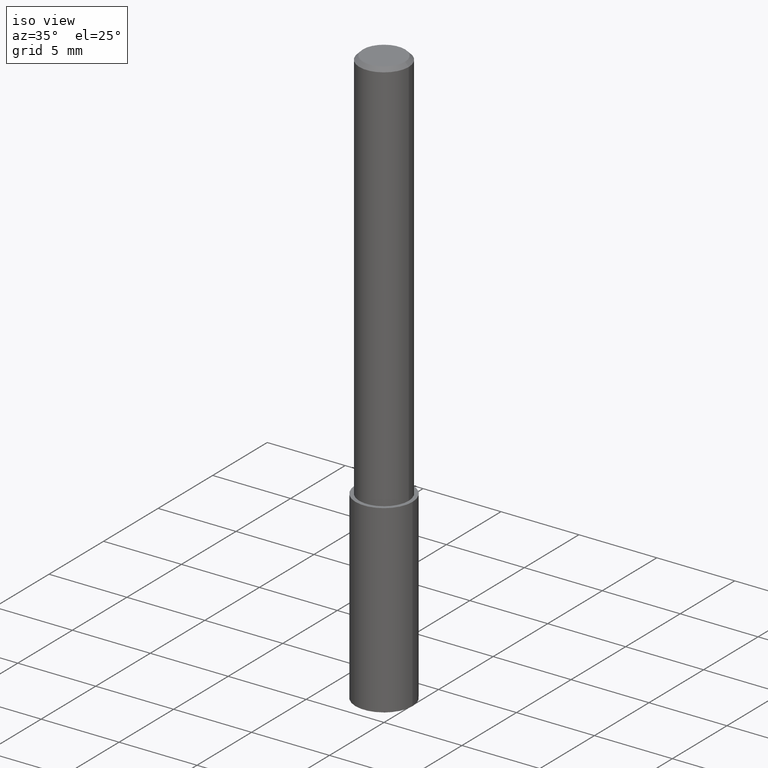
[diagram: clean part render]
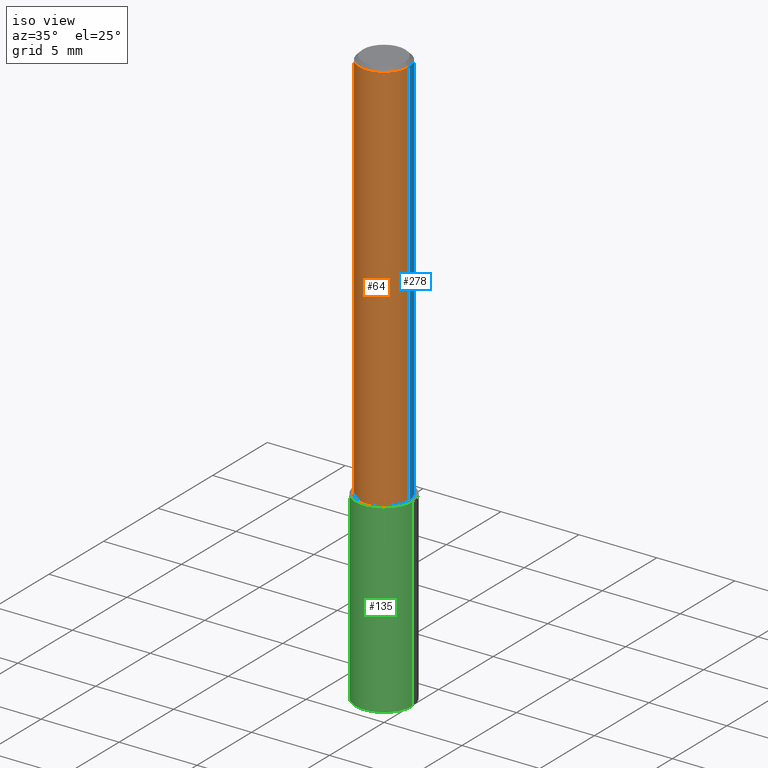
[diagram: same view with three faces highlighted in distinct colors, each labeled with its STEP entity id]
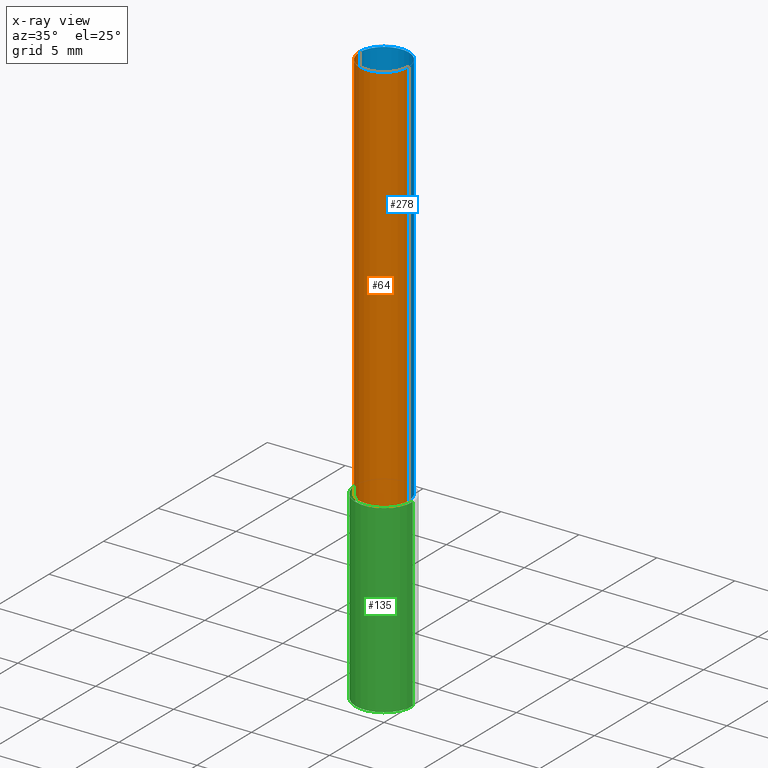
[diagram: x-ray of the same camera — body ghosted, the three highlighted faces saturated]
A machine part, iso view with three faces highlighted in distinct colors.
The next image is the same camera in x-ray (body ghosted, the three faces saturated) — at least one of them is partly hidden behind the body in this view.
Their STEP definitions:

[orange] entity #64 — the highlighted cylindrical surface (edge-blend (fillet) strip) has radius 1.5875 mm, axis along (-0, 0, 1).
#5 = DIRECTION ( 'NONE',  ( -2.445468806185136597E-29, 3.491481338843145583E-15, 1.000000000000000000 ) ) ;
#30 = DIRECTION ( 'NONE',  ( -2.445468806185136597E-29, 3.491481338843145583E-15, 1.000000000000000000 ) ) ;
#31 = LINE ( 'NONE', #320, #180 ) ;
#56 = EDGE_CURVE ( 'NONE', #208, #173, #177, .T. ) ;
#64 = ADVANCED_FACE ( 'NONE', ( #266 ), #126, .T. ) ;
#65 = EDGE_CURVE ( 'NONE', #162, #208, #199, .T. ) ;
#67 = VERTEX_POINT ( 'NONE', #275 ) ;
#80 = VECTOR ( 'NONE', #151, 39.37007874015748143 ) ;
#102 = CIRCLE ( 'NONE', #227, 0.06250000000000000000 ) ;
#116 = ORIENTED_EDGE ( 'NONE', *, *, #338, .F. ) ;
#124 = ORIENTED_EDGE ( 'NONE', *, *, #292, .F. ) ;
#126 = CYLINDRICAL_SURFACE ( 'NONE', #168, 0.06250000000000006939 ) ;
#131 = AXIS2_PLACEMENT_3D ( 'NONE', #243, #30, #269 ) ;
#142 = ORIENTED_EDGE ( 'NONE', *, *, #65, .T. ) ;
#151 = DIRECTION ( 'NONE',  ( -2.445468806185136877E-29, 3.491481338843145188E-15, 1.000000000000000000 ) ) ;
#158 = CARTESIAN_POINT ( 'NONE',  ( 2.292627005798580623E-31, -3.273263755165470184E-17, -0.009375000000000060368 ) ) ;
#162 = VERTEX_POINT ( 'NONE', #248 ) ;
#168 = AXIS2_PLACEMENT_3D ( 'NONE', #183, #184, #291 ) ;
#173 = VERTEX_POINT ( 'NONE', #296 ) ;
#177 = LINE ( 'NONE', #286, #80 ) ;
#180 = VECTOR ( 'NONE', #326, 39.37007874015748143 ) ;
#183 = CARTESIAN_POINT ( 'NONE',  ( 0.000000000000000000, 0.000000000000000000, 0.000000000000000000 ) ) ;
#184 = DIRECTION ( 'NONE',  ( -2.445468806185136597E-29, 3.491481338843145583E-15, 1.000000000000000000 ) ) ;
#199 = CIRCLE ( 'NONE', #131, 0.06250000000000012490 ) ;
#208 = VERTEX_POINT ( 'NONE', #301 ) ;
#227 = AXIS2_PLACEMENT_3D ( 'NONE', #158, #5, #311 ) ;
#243 = CARTESIAN_POINT ( 'NONE',  ( 2.445468806185137438E-29, -3.491481338843146371E-15, -1.000000000000000222 ) ) ;
#248 = CARTESIAN_POINT ( 'NONE',  ( -0.06250000000000012490, -1.318017778347335489E-15, -1.000000000000000222 ) ) ;
#266 = FACE_OUTER_BOUND ( 'NONE', #333, .T. ) ;
#269 = DIRECTION ( 'NONE',  ( 1.000000000000000000, -6.982962677686264344E-15, 0.000000000000000000 ) ) ;
#275 = CARTESIAN_POINT ( 'NONE',  ( -0.06250000000000000000, -1.318017778347336672E-15, -0.009375000000000060368 ) ) ;
#286 = CARTESIAN_POINT ( 'NONE',  ( 0.06250000000000006939, -4.364351673553921624E-16, 3.047610484872463374E-30 ) ) ;
#290 = ORIENTED_EDGE ( 'NONE', *, *, #56, .T. ) ;
#291 = DIRECTION ( 'NONE',  ( 1.000000000000000000, -6.982962677686266711E-15, 4.876176775795935793E-29 ) ) ;
#292 = EDGE_CURVE ( 'NONE', #162, #67, #31, .T. ) ;
#296 = CARTESIAN_POINT ( 'NONE',  ( 0.06250000000000000000, -4.691678049070463404E-16, -0.009375000000000060368 ) ) ;
#301 = CARTESIAN_POINT ( 'NONE',  ( 0.06250000000000012490, -3.927916506198539224E-15, -1.000000000000000222 ) ) ;
#311 = DIRECTION ( 'NONE',  ( 1.000000000000000000, -6.982962677686266711E-15, 0.000000000000000000 ) ) ;
#320 = CARTESIAN_POINT ( 'NONE',  ( -0.06250000000000006939, 4.440892098500631092E-16, -3.074334431409319267E-30 ) ) ;
#326 = DIRECTION ( 'NONE',  ( -2.445468806185136877E-29, 3.491481338843145188E-15, 1.000000000000000000 ) ) ;
#333 = EDGE_LOOP ( 'NONE', ( #124, #142, #290, #116 ) ) ;
#338 = EDGE_CURVE ( 'NONE', #67, #173, #102, .T. ) ;

[blue] entity #278 — the highlighted cylindrical surface (edge-blend (fillet) strip) has radius 1.5875 mm, axis along (-0, 0, 1).
#31 = LINE ( 'NONE', #320, #180 ) ;
#46 = EDGE_CURVE ( 'NONE', #173, #67, #317, .T. ) ;
#56 = EDGE_CURVE ( 'NONE', #208, #173, #177, .T. ) ;
#67 = VERTEX_POINT ( 'NONE', #275 ) ;
#80 = VECTOR ( 'NONE', #151, 39.37007874015748143 ) ;
#91 = CARTESIAN_POINT ( 'NONE',  ( 2.292627005798580623E-31, -3.273263755165470184E-17, -0.009375000000000060368 ) ) ;
#92 = FACE_OUTER_BOUND ( 'NONE', #244, .T. ) ;
#94 = DIRECTION ( 'NONE',  ( -2.445468806185136597E-29, 3.491481338843145583E-15, 1.000000000000000000 ) ) ;
#99 = DIRECTION ( 'NONE',  ( -2.445468806185136597E-29, 3.491481338843145583E-15, 1.000000000000000000 ) ) ;
#103 = DIRECTION ( 'NONE',  ( 1.000000000000000000, -6.982962677686266711E-15, 4.876176775795935793E-29 ) ) ;
#128 = EDGE_CURVE ( 'NONE', #208, #162, #335, .T. ) ;
#151 = DIRECTION ( 'NONE',  ( -2.445468806185136877E-29, 3.491481338843145188E-15, 1.000000000000000000 ) ) ;
#154 = CARTESIAN_POINT ( 'NONE',  ( 2.445468806185137438E-29, -3.491481338843146371E-15, -1.000000000000000222 ) ) ;
#162 = VERTEX_POINT ( 'NONE', #248 ) ;
#164 = DIRECTION ( 'NONE',  ( 1.000000000000000000, -6.982962677686264344E-15, 0.000000000000000000 ) ) ;
#173 = VERTEX_POINT ( 'NONE', #296 ) ;
#177 = LINE ( 'NONE', #286, #80 ) ;
#180 = VECTOR ( 'NONE', #326, 39.37007874015748143 ) ;
#200 = CYLINDRICAL_SURFACE ( 'NONE', #272, 0.06250000000000006939 ) ;
#205 = DIRECTION ( 'NONE',  ( 1.000000000000000000, -6.982962677686266711E-15, 0.000000000000000000 ) ) ;
#208 = VERTEX_POINT ( 'NONE', #301 ) ;
#239 = ORIENTED_EDGE ( 'NONE', *, *, #292, .T. ) ;
#240 = ORIENTED_EDGE ( 'NONE', *, *, #56, .F. ) ;
#244 = EDGE_LOOP ( 'NONE', ( #309, #239, #262, #240 ) ) ;
#248 = CARTESIAN_POINT ( 'NONE',  ( -0.06250000000000012490, -1.318017778347335489E-15, -1.000000000000000222 ) ) ;
#251 = DIRECTION ( 'NONE',  ( -2.445468806185136597E-29, 3.491481338843145583E-15, 1.000000000000000000 ) ) ;
#262 = ORIENTED_EDGE ( 'NONE', *, *, #46, .F. ) ;
#272 = AXIS2_PLACEMENT_3D ( 'NONE', #305, #94, #103 ) ;
#275 = CARTESIAN_POINT ( 'NONE',  ( -0.06250000000000000000, -1.318017778347336672E-15, -0.009375000000000060368 ) ) ;
#278 = ADVANCED_FACE ( 'NONE', ( #92 ), #200, .T. ) ;
#286 = CARTESIAN_POINT ( 'NONE',  ( 0.06250000000000006939, -4.364351673553921624E-16, 3.047610484872463374E-30 ) ) ;
#292 = EDGE_CURVE ( 'NONE', #162, #67, #31, .T. ) ;
#296 = CARTESIAN_POINT ( 'NONE',  ( 0.06250000000000000000, -4.691678049070463404E-16, -0.009375000000000060368 ) ) ;
#301 = CARTESIAN_POINT ( 'NONE',  ( 0.06250000000000012490, -3.927916506198539224E-15, -1.000000000000000222 ) ) ;
#305 = CARTESIAN_POINT ( 'NONE',  ( 0.000000000000000000, 0.000000000000000000, 0.000000000000000000 ) ) ;
#309 = ORIENTED_EDGE ( 'NONE', *, *, #128, .T. ) ;
#312 = AXIS2_PLACEMENT_3D ( 'NONE', #91, #99, #205 ) ;
#317 = CIRCLE ( 'NONE', #312, 0.06250000000000000000 ) ;
#320 = CARTESIAN_POINT ( 'NONE',  ( -0.06250000000000006939, 4.440892098500631092E-16, -3.074334431409319267E-30 ) ) ;
#326 = DIRECTION ( 'NONE',  ( -2.445468806185136877E-29, 3.491481338843145188E-15, 1.000000000000000000 ) ) ;
#328 = AXIS2_PLACEMENT_3D ( 'NONE', #154, #251, #164 ) ;
#335 = CIRCLE ( 'NONE', #328, 0.06250000000000012490 ) ;

[green] entity #135 — the highlighted cylindrical surface (edge-blend (fillet) strip) has radius 1.8288 mm, axis along (-0, 0, 1).
#2 = DIRECTION ( 'NONE',  ( -2.445468806185136597E-29, 3.491481338843145583E-15, 1.000000000000000000 ) ) ;
#4 = CARTESIAN_POINT ( 'NONE',  ( -0.07199999999999999456, -2.979890569095874178E-15, -1.000000000000000222 ) ) ;
#9 = LINE ( 'NONE', #42, #101 ) ;
#18 = ORIENTED_EDGE ( 'NONE', *, *, #69, .T. ) ;
#19 = CARTESIAN_POINT ( 'NONE',  ( -0.07199999999999999456, -3.794149142288778637E-15, -1.000000000000000222 ) ) ;
#22 = CARTESIAN_POINT ( 'NONE',  ( -0.07200000000000000844, -4.608407715481682307E-15, -1.466425848612840088 ) ) ;
#29 = AXIS2_PLACEMENT_3D ( 'NONE', #220, #2, #214 ) ;
#35 = VECTOR ( 'NONE', #160, 39.37007874015748143 ) ;
#36 = FACE_OUTER_BOUND ( 'NONE', #219, .T. ) ;
#42 = CARTESIAN_POINT ( 'NONE',  ( 0.07199999999999999456, -3.994254651636557938E-15, -1.000000000000000222 ) ) ;
#69 = EDGE_CURVE ( 'NONE', #100, #319, #79, .T. ) ;
#72 = ORIENTED_EDGE ( 'NONE', *, *, #74, .F. ) ;
#74 = EDGE_CURVE ( 'NONE', #100, #204, #190, .T. ) ;
#79 = CIRCLE ( 'NONE', #29, 0.07200000000000000844 ) ;
#82 = AXIS2_PLACEMENT_3D ( 'NONE', #195, #133, #302 ) ;
#84 = EDGE_CURVE ( 'NONE', #204, #289, #111, .T. ) ;
#85 = CARTESIAN_POINT ( 'NONE',  ( 0.07199999999999999456, -3.994254651636557149E-15, -1.000000000000000222 ) ) ;
#96 = ORIENTED_EDGE ( 'NONE', *, *, #167, .T. ) ;
#100 = VERTEX_POINT ( 'NONE', #22 ) ;
#101 = VECTOR ( 'NONE', #105, 39.37007874015748143 ) ;
#105 = DIRECTION ( 'NONE',  ( -2.445468806185136877E-29, 3.491481338843145188E-15, 1.000000000000000000 ) ) ;
#107 = CYLINDRICAL_SURFACE ( 'NONE', #82, 0.07199999999999999456 ) ;
#111 = CIRCLE ( 'NONE', #159, 0.07199999999999999456 ) ;
#133 = DIRECTION ( 'NONE',  ( -2.445468806185136597E-29, 3.491481338843145583E-15, 1.000000000000000000 ) ) ;
#135 = ADVANCED_FACE ( 'NONE', ( #36 ), #107, .T. ) ;
#159 = AXIS2_PLACEMENT_3D ( 'NONE', #298, #222, #322 ) ;
#160 = DIRECTION ( 'NONE',  ( -2.445468806185136877E-29, 3.491481338843145188E-15, 1.000000000000000000 ) ) ;
#167 = EDGE_CURVE ( 'NONE', #319, #289, #9, .T. ) ;
#190 = LINE ( 'NONE', #4, #35 ) ;
#195 = CARTESIAN_POINT ( 'NONE',  ( 2.445468806185137438E-29, -3.491481338843146371E-15, -1.000000000000000222 ) ) ;
#204 = VERTEX_POINT ( 'NONE', #19 ) ;
#214 = DIRECTION ( 'NONE',  ( 1.000000000000000000, -6.982962677686264344E-15, 0.000000000000000000 ) ) ;
#219 = EDGE_LOOP ( 'NONE', ( #72, #18, #96, #337 ) ) ;
#220 = CARTESIAN_POINT ( 'NONE',  ( 3.586098669366267653E-29, -5.119998485228954106E-15, -1.466425848612840088 ) ) ;
#222 = DIRECTION ( 'NONE',  ( -2.445468806185136597E-29, 3.491481338843145583E-15, 1.000000000000000000 ) ) ;
#245 = CARTESIAN_POINT ( 'NONE',  ( 0.07200000000000000844, -5.622771798022365278E-15, -1.466425848612840088 ) ) ;
#289 = VERTEX_POINT ( 'NONE', #85 ) ;
#298 = CARTESIAN_POINT ( 'NONE',  ( 2.445468806185136877E-29, -3.491481338843145977E-15, -1.000000000000000222 ) ) ;
#302 = DIRECTION ( 'NONE',  ( 1.000000000000000000, -6.982962677686265133E-15, 0.000000000000000000 ) ) ;
#319 = VERTEX_POINT ( 'NONE', #245 ) ;
#322 = DIRECTION ( 'NONE',  ( 1.000000000000000000, -6.982962677686265133E-15, 0.000000000000000000 ) ) ;
#337 = ORIENTED_EDGE ( 'NONE', *, *, #84, .F. ) ;